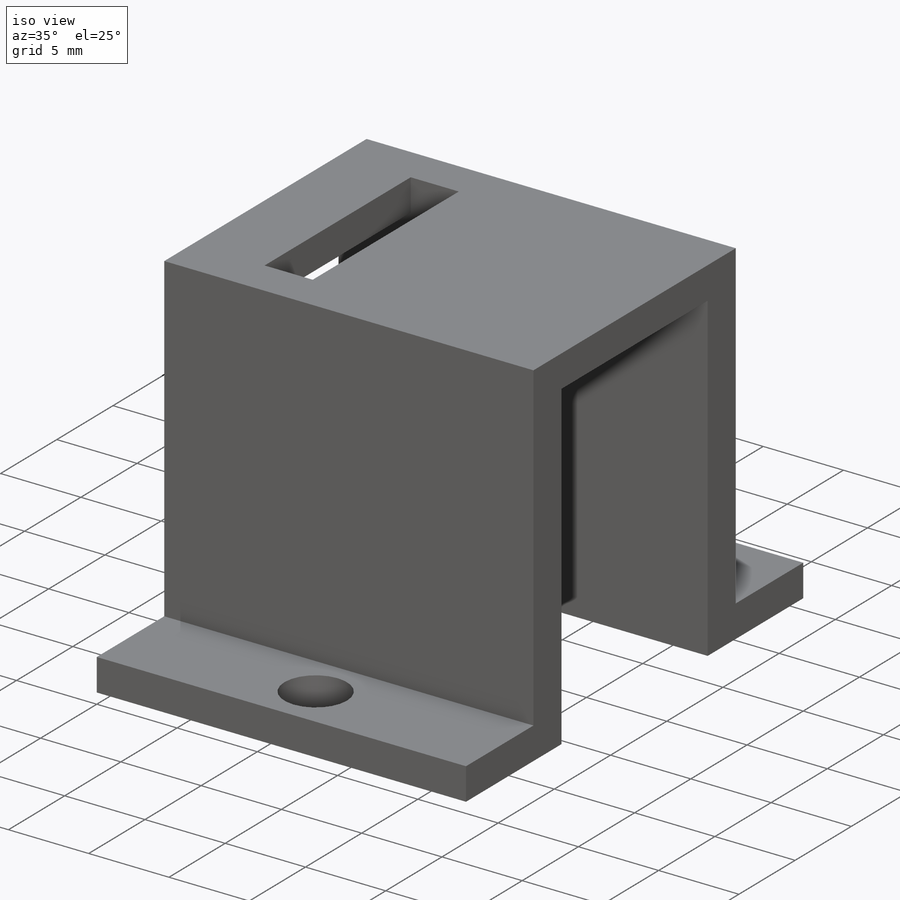
[diagram: iso view]
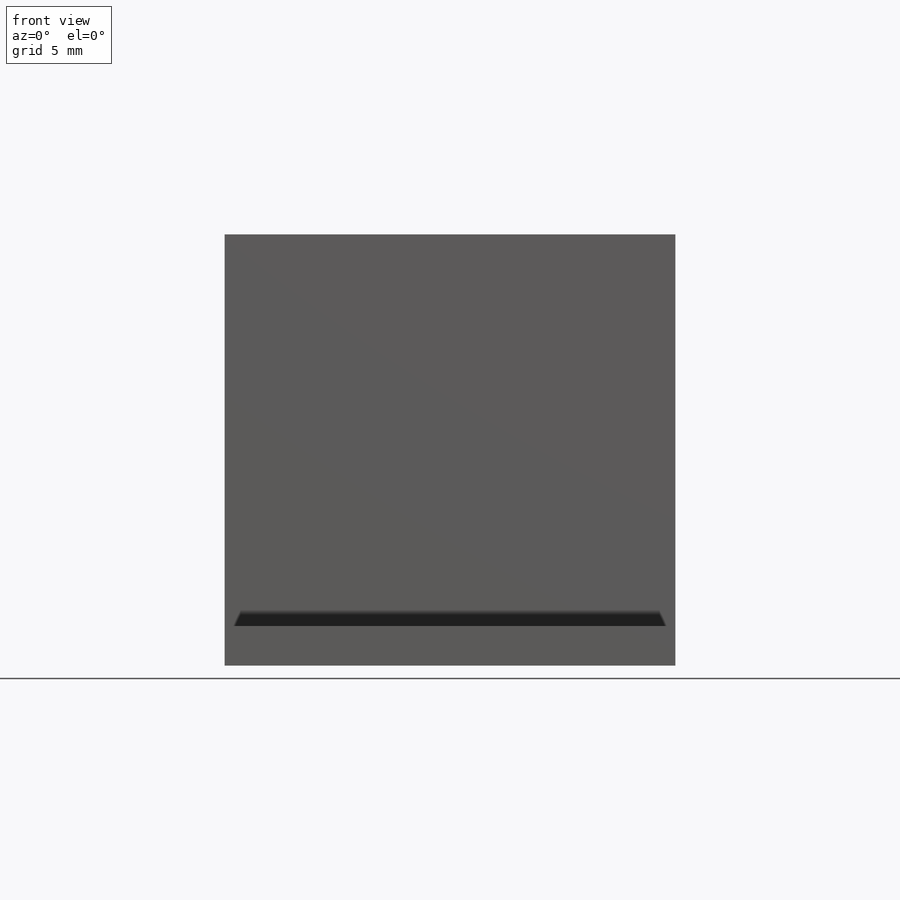
[diagram: front view]
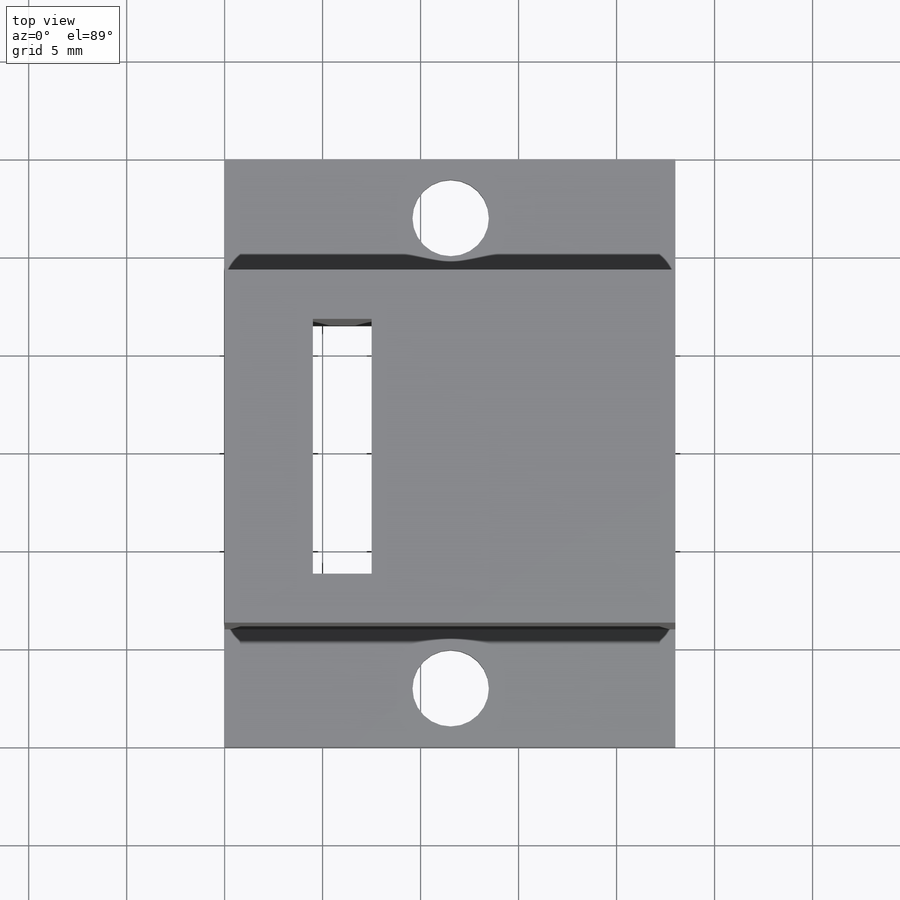
[diagram: top view]
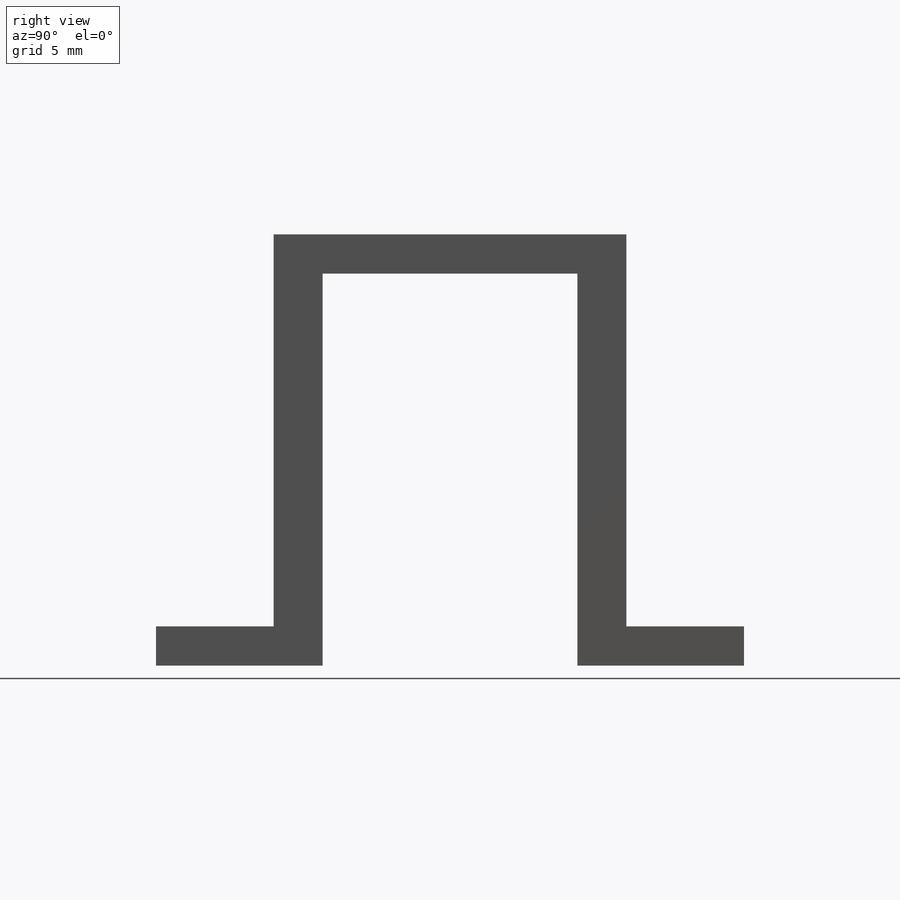
[diagram: right view]
SOLIDWORKS PART (.sldprt)
format: sldprt  version: not decoded by parser v0  size: 212,992 bytes
history: native  units: mm
features: sketch x6, plane x3, cut_extrude x3, material x1, extrude x1, hole x1 (+9 scaffold rows collapsed)
feature tree (24):
  scaffold x9  (default folders/planes/origin — collapsed)
  material  "Material <not specified>"
  plane  "Plan de face"
  plane  "Plan de dessus"
  plane  "Plan de droite"
  sketch  "Esquisse1"  dims[D1=23.0mm D2=30.0mm]
  extrude  "Boss.-Extru.1"  Depth=22mm
  sketch  "Esquisse2"  dims[D1=6.0mm]
  cut_extrude  "Enlèv. mat.-Extru.1"  Depth=20mm
  hole  "Dégagement M3.51"  Diameter=3.9mm Depth=5mm
  sketch  "Esquisse4"
  sketch  "Esquisse3"  dims[hole-wizard template sketch: 46 standard entries collapsed; hole parameters kept: c15.Diamètre du perçage=3.9mm c15.Profondeur du perçage=5.0mm c15.D3=~14.816244mm c15.Angle de pointe=118.0deg]
  sketch  "Esquisse5"  dims[D1=15.5mm D2=3.0mm D3=13.0mm]
  cut_extrude  "Enlèv. mat.-Extru.2"  [1 undecoded]
  sketch  "Esquisse6"  dims[c1.D1=14.0mm c1.D2=6.0mm c2.D1=13.0mm]
  cut_extrude  "Enlèv. mat.-Extru.3"  Depth=20mm
decode coverage: 9 of 11 modeling features carry decoded parameters
note: ~ marks probable driven/reference dimensions
note: 1 parameter value undecoded
note: suppression state not decoded; provenance and decode notes live in map.json
